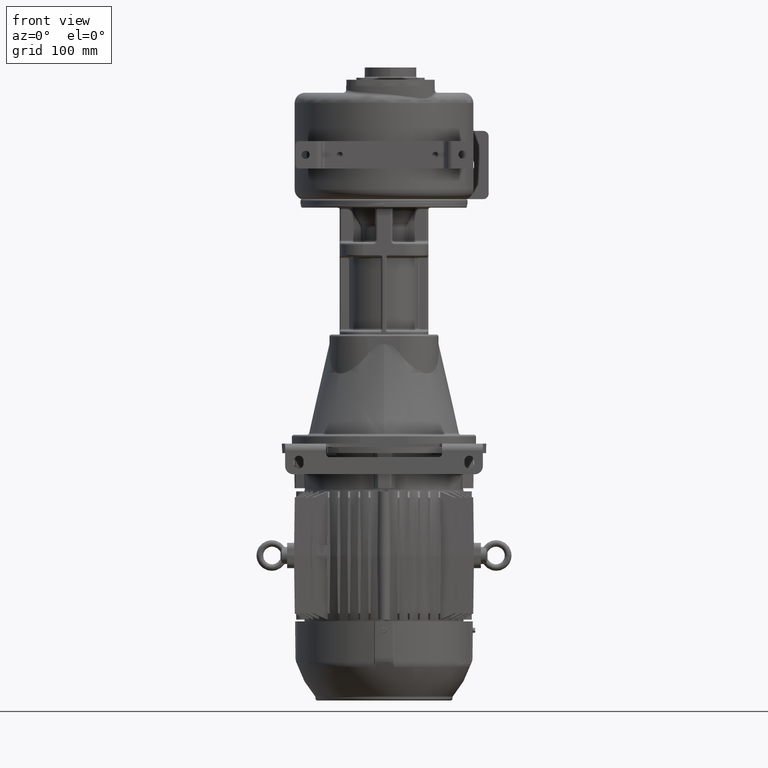
[diagram: clean part render]
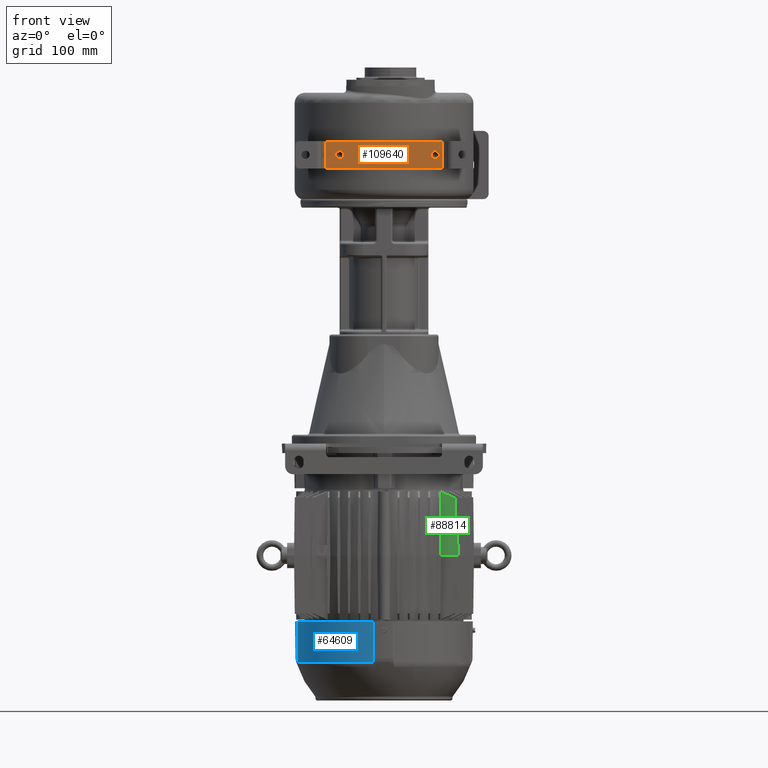
[diagram: same view with three faces highlighted in distinct colors, each labeled with its STEP entity id]
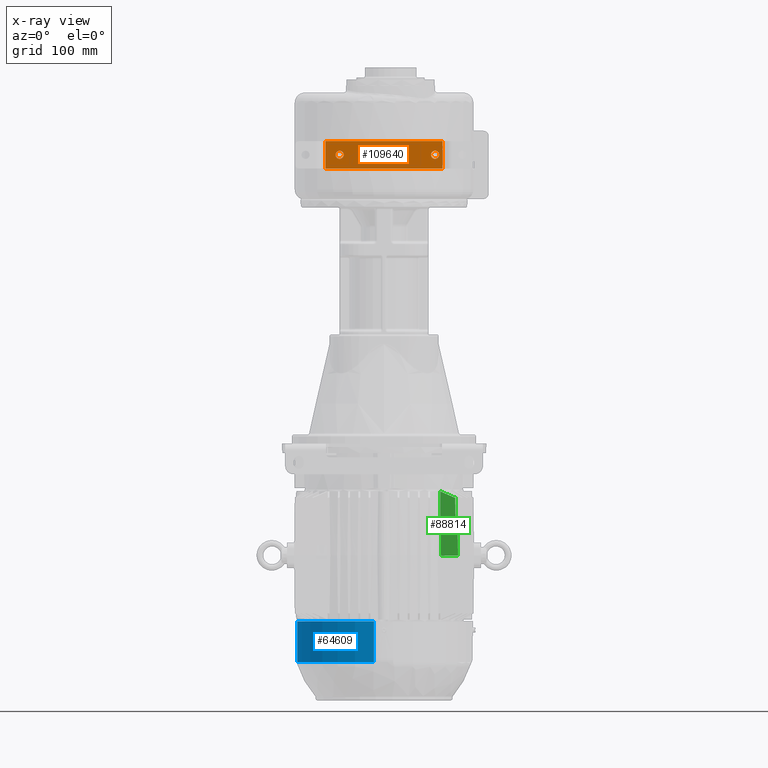
[diagram: x-ray of the same camera — body ghosted, the three highlighted faces saturated]
A machine part, front view with three faces highlighted in distinct colors.
The next image is the same camera in x-ray (body ghosted, the three faces saturated) — at least one of them is partly hidden behind the body in this view.
Their STEP definitions:

[orange] entity #109640 — the highlighted planar face has unit normal (0, 1, 0).
#42156=DIRECTION('',(-1.E0,0.E0,0.E0));
#42157=VECTOR('',#42156,1.72E2);
#42158=CARTESIAN_POINT('',(8.6E1,-5.E0,-2.E1));
#42159=LINE('',#42158,#42157);
#42200=DIRECTION('',(-1.E0,0.E0,0.E0));
#42201=VECTOR('',#42200,1.72E2);
#42202=CARTESIAN_POINT('',(8.6E1,-5.E0,2.E1));
#42203=LINE('',#42202,#42201);
#42254=DIRECTION('',(0.E0,0.E0,1.E0));
#42255=VECTOR('',#42254,4.E1);
#42256=CARTESIAN_POINT('',(8.6E1,-5.E0,-2.E1));
#42257=LINE('',#42256,#42255);
#42258=CARTESIAN_POINT('',(7.5E1,-5.E0,0.E0));
#42259=DIRECTION('',(0.E0,1.E0,0.E0));
#42260=DIRECTION('',(0.E0,0.E0,1.E0));
#42261=AXIS2_PLACEMENT_3D('',#42258,#42259,#42260);
#42263=CARTESIAN_POINT('',(7.5E1,-5.E0,0.E0));
#42264=DIRECTION('',(0.E0,1.E0,0.E0));
#42265=DIRECTION('',(0.E0,0.E0,-1.E0));
#42266=AXIS2_PLACEMENT_3D('',#42263,#42264,#42265);
#42268=CARTESIAN_POINT('',(-6.5E1,-5.E0,0.E0));
#42269=DIRECTION('',(0.E0,1.E0,0.E0));
#42270=DIRECTION('',(0.E0,0.E0,1.E0));
#42271=AXIS2_PLACEMENT_3D('',#42268,#42269,#42270);
#42273=CARTESIAN_POINT('',(-6.5E1,-5.E0,0.E0));
#42274=DIRECTION('',(0.E0,1.E0,0.E0));
#42275=DIRECTION('',(0.E0,0.E0,-1.E0));
#42276=AXIS2_PLACEMENT_3D('',#42273,#42274,#42275);
#42278=DIRECTION('',(0.E0,0.E0,1.E0));
#42279=VECTOR('',#42278,4.E1);
#42280=CARTESIAN_POINT('',(-8.6E1,-5.E0,-2.E1));
#42281=LINE('',#42280,#42279);
#45045=CARTESIAN_POINT('',(8.6E1,-5.E0,-2.E1));
#45046=CARTESIAN_POINT('',(-8.6E1,-5.E0,-2.E1));
#45047=VERTEX_POINT('',#45045);
#45048=VERTEX_POINT('',#45046);
#45057=CARTESIAN_POINT('',(8.6E1,-5.E0,2.E1));
#45058=CARTESIAN_POINT('',(-8.6E1,-5.E0,2.E1));
#45059=VERTEX_POINT('',#45057);
#45060=VERTEX_POINT('',#45058);
#45125=CARTESIAN_POINT('',(-6.5E1,-5.E0,6.E0));
#45126=CARTESIAN_POINT('',(-6.5E1,-5.E0,-6.E0));
#45127=VERTEX_POINT('',#45125);
#45128=VERTEX_POINT('',#45126);
#45129=CARTESIAN_POINT('',(7.5E1,-5.E0,6.E0));
#45130=CARTESIAN_POINT('',(7.5E1,-5.E0,-6.E0));
#45131=VERTEX_POINT('',#45129);
#45132=VERTEX_POINT('',#45130);
#109616=CARTESIAN_POINT('',(8.6E1,-5.E0,-2.E1));
#109617=DIRECTION('',(0.E0,1.E0,0.E0));
#109618=DIRECTION('',(-1.E0,0.E0,0.E0));
#109619=AXIS2_PLACEMENT_3D('',#109616,#109617,#109618);
#109620=PLANE('',#109619);
#109621=ORIENTED_EDGE('',*,*,#109468,.T.);
#109623=ORIENTED_EDGE('',*,*,#109622,.T.);
#109624=ORIENTED_EDGE('',*,*,#109526,.F.);
#109625=ORIENTED_EDGE('',*,*,#109609,.F.);
#109626=EDGE_LOOP('',(#109621,#109623,#109624,#109625));
#109627=FACE_OUTER_BOUND('',#109626,.F.);
#109629=ORIENTED_EDGE('',*,*,#109628,.F.);
#109631=ORIENTED_EDGE('',*,*,#109630,.F.);
#109632=EDGE_LOOP('',(#109629,#109631));
#109633=FACE_BOUND('',#109632,.F.);
#109635=ORIENTED_EDGE('',*,*,#109634,.F.);
#109637=ORIENTED_EDGE('',*,*,#109636,.F.);
#109638=EDGE_LOOP('',(#109635,#109637));
#109639=FACE_BOUND('',#109638,.F.);
#109640=ADVANCED_FACE('',(#109627,#109633,#109639),#109620,.F.);
#42262=CIRCLE('',#42261,6.E0);
#42267=CIRCLE('',#42266,6.E0);
#42272=CIRCLE('',#42271,6.E0);
#42277=CIRCLE('',#42276,6.E0);
#109468=EDGE_CURVE('',#45047,#45048,#42159,.T.);
#109526=EDGE_CURVE('',#45059,#45060,#42203,.T.);
#109609=EDGE_CURVE('',#45047,#45059,#42257,.T.);
#109622=EDGE_CURVE('',#45048,#45060,#42281,.T.);
#109628=EDGE_CURVE('',#45131,#45132,#42262,.T.);
#109630=EDGE_CURVE('',#45132,#45131,#42267,.T.);
#109634=EDGE_CURVE('',#45127,#45128,#42272,.T.);
#109636=EDGE_CURVE('',#45128,#45127,#42277,.T.);

[blue] entity #64609 — the highlighted cylindrical surface (partial cylindrical patch) has radius 127.75 mm, axis along (0, 0, -1).
#7869=CARTESIAN_POINT('',(3.807504991333E-13,1.31E2,-6.842001E2));
#7870=DIRECTION('',(0.E0,0.E0,1.E0));
#7871=DIRECTION('',(-9.931901222367E-1,-1.165048543689E-1,0.E0));
#7872=AXIS2_PLACEMENT_3D('',#7869,#7870,#7871);
#8082=DIRECTION('',(0.E0,1.094382470295E-14,1.E0));
#8083=VECTOR('',#8082,5.973225400103E1);
#8084=CARTESIAN_POINT('',(-1.268800381157E2,1.161165048544E2,
-7.439323540010E2));
#8085=LINE('',#8084,#8083);
#10640=DIRECTION('',(0.E0,0.E0,-1.E0));
#10641=VECTOR('',#10640,5.973225400103E1);
#10642=CARTESIAN_POINT('',(-1.488349514563E1,4.119961884265E0,-6.842001E2));
#10643=LINE('',#10642,#10641);
#10678=CARTESIAN_POINT('',(4.099095173931E-13,1.31E2,-7.439323540010E2));
#10679=DIRECTION('',(0.E0,0.E0,-1.E0));
#10680=DIRECTION('',(-1.165048543689E-1,-9.931901222367E-1,0.E0));
#10681=AXIS2_PLACEMENT_3D('',#10678,#10679,#10680);
#48375=CARTESIAN_POINT('',(-1.268800381157E2,1.161165048544E2,
-7.439323540010E2));
#48376=CARTESIAN_POINT('',(-1.268800381157E2,1.161165048544E2,-6.842001E2));
#48377=VERTEX_POINT('',#48375);
#48378=VERTEX_POINT('',#48376);
#48383=CARTESIAN_POINT('',(-1.488349514563E1,4.119961884265E0,-6.842001E2));
#48384=VERTEX_POINT('',#48383);
#48391=CARTESIAN_POINT('',(-1.488349514563E1,4.119961884265E0,
-7.439323540010E2));
#48392=VERTEX_POINT('',#48391);
#64598=CARTESIAN_POINT('',(4.441866874973E-13,1.31E2,-8.141491429497E2));
#64599=DIRECTION('',(0.E0,0.E0,-1.E0));
#64600=DIRECTION('',(-1.E0,0.E0,0.E0));
#64601=AXIS2_PLACEMENT_3D('',#64598,#64599,#64600);
#64602=CYLINDRICAL_SURFACE('',#64601,1.2775E2);
#64603=ORIENTED_EDGE('',*,*,#61070,.T.);
#64604=ORIENTED_EDGE('',*,*,#64462,.T.);
#64605=ORIENTED_EDGE('',*,*,#64589,.T.);
#64606=ORIENTED_EDGE('',*,*,#61218,.T.);
#64607=EDGE_LOOP('',(#64603,#64604,#64605,#64606));
#64608=FACE_OUTER_BOUND('',#64607,.F.);
#64609=ADVANCED_FACE('',(#64608),#64602,.T.);
#7873=CIRCLE('',#7872,1.2775E2);
#10682=CIRCLE('',#10681,1.2775E2);
#61070=EDGE_CURVE('',#48378,#48384,#7873,.T.);
#61218=EDGE_CURVE('',#48377,#48378,#8085,.T.);
#64462=EDGE_CURVE('',#48384,#48392,#10643,.T.);
#64589=EDGE_CURVE('',#48392,#48377,#10682,.T.);

[green] entity #88814 — the highlighted planar face has unit normal (0, -0.9999, 0.0131).
#6764=CARTESIAN_POINT('',(8.270358786120E1,4.829641213880E1,-5.114841674394E2));
#6765=CARTESIAN_POINT('',(8.268050339490E1,4.832247561156E1,-5.094931785122E2));
#6766=CARTESIAN_POINT('',(8.263436421871E1,4.837456877894E1,-5.055137809709E2));
#6767=CARTESIAN_POINT('',(8.256524481626E1,4.845260709177E1,-4.995524335277E2));
#6768=CARTESIAN_POINT('',(8.251922460576E1,4.850456521575E1,-4.955833519526E2));
#6769=CARTESIAN_POINT('',(8.249622936373E1,4.853052740597E1,-4.936001E2));
#6776=CARTESIAN_POINT('',(8.270358786120E1,4.829641213880E1,-5.114841674394E2));
#26175=DIRECTION('',(-1.308847434605E-2,1.308847434606E-2,9.998286771635E-1));
#26176=VECTOR('',#26175,7.612897519260E1);
#26177=CARTESIAN_POINT('',(8.37E1,4.73E1,-5.876001E2));
#26178=LINE('',#26177,#26176);
#26183=DIRECTION('',(-1.308847434605E-2,1.308847434606E-2,9.998286771635E-1));
#26184=VECTOR('',#26183,4.247529209439E1);
#26185=CARTESIAN_POINT('',(1.050035741063E2,4.784981011756E1,-5.456001E2));
#26186=LINE('',#26185,#26184);
#26187=DIRECTION('',(-1.E0,0.E0,0.E0));
#26188=VECTOR('',#26187,3.E0);
#26189=CARTESIAN_POINT('',(1.080035741063E2,4.784981011756E1,-5.456001E2));
#26190=LINE('',#26189,#26188);
#26191=DIRECTION('',(-1.308847434605E-2,1.308847434606E-2,9.998286771635E-1));
#26192=VECTOR('',#26191,4.200719679211E1);
#26193=CARTESIAN_POINT('',(1.085533842239E2,4.73E1,-5.876001E2));
#26194=LINE('',#26193,#26192);
#26264=DIRECTION('',(-1.E0,0.E0,0.E0));
#26265=VECTOR('',#26264,2.485338422391E1);
#26266=CARTESIAN_POINT('',(1.085533842239E2,4.73E1,-5.876001E2));
#26267=LINE('',#26266,#26265);
#26318=CARTESIAN_POINT('',(8.249622936373E1,4.853052740597E1,-4.936001E2));
#26319=CARTESIAN_POINT('',(8.310092593453E1,4.852727786082E1,
-4.938483327848E2));
#26320=CARTESIAN_POINT('',(8.431960904804E1,4.852069349824E1,
-4.943513123030E2));
#26321=CARTESIAN_POINT('',(8.617463585466E1,4.851056467083E1,
-4.951250535238E2));
#26322=CARTESIAN_POINT('',(8.805913934256E1,4.850016885374E1,
-4.959191900878E2));
#26323=CARTESIAN_POINT('',(8.997481280216E1,4.848949525046E1,
-4.967345467419E2));
#26324=CARTESIAN_POINT('',(9.192368266601E1,4.847853097334E1,
-4.975721079732E2));
#26325=CARTESIAN_POINT('',(9.390781820219E1,4.846726259147E1,
-4.984328997688E2));
#26326=CARTESIAN_POINT('',(9.592942920402E1,4.845567558468E1,
-4.993180313253E2));
#26327=CARTESIAN_POINT('',(9.799081826905E1,4.844375460360E1,
-5.002286751812E2));
#26328=CARTESIAN_POINT('',(1.000945329666E2,4.843148255323E1,
-5.011661372232E2));
#26329=CARTESIAN_POINT('',(1.022428713060E2,4.841884352211E1,
-5.021316329286E2));
#26330=CARTESIAN_POINT('',(1.037074767745E2,4.841015548178E1,
-5.027953124099E2));
#26331=CARTESIAN_POINT('',(1.044476373354E2,4.840574688848E1,
-5.031320848931E2));
#47370=VERTEX_POINT('',#6776);
#47371=VERTEX_POINT('',#6769);
#47750=CARTESIAN_POINT('',(1.080035741063E2,4.784981011756E1,-5.456001E2));
#47752=VERTEX_POINT('',#47750);
#47762=CARTESIAN_POINT('',(1.085533842239E2,4.73E1,-5.876001E2));
#47764=VERTEX_POINT('',#47762);
#47842=CARTESIAN_POINT('',(1.050035741063E2,4.784981011756E1,-5.456001E2));
#47843=VERTEX_POINT('',#47842);
#47844=CARTESIAN_POINT('',(1.044476373354E2,4.840574688848E1,
-5.031320848931E2));
#47845=VERTEX_POINT('',#47844);
#47943=CARTESIAN_POINT('',(8.37E1,4.73E1,-5.876001E2));
#47944=VERTEX_POINT('',#47943);
#88795=CARTESIAN_POINT('',(1.055533842239E2,4.73E1,-5.876001E2));
#88796=DIRECTION('',(0.E0,-9.999143275740E-1,1.308959557135E-2));
#88797=DIRECTION('',(0.E0,-1.308959557135E-2,-9.999143275740E-1));
#88798=AXIS2_PLACEMENT_3D('',#88795,#88796,#88797);
#88799=PLANE('',#88798);
#88801=ORIENTED_EDGE('',*,*,#88800,.F.);
#88803=ORIENTED_EDGE('',*,*,#88802,.F.);
#88805=ORIENTED_EDGE('',*,*,#88804,.F.);
#88807=ORIENTED_EDGE('',*,*,#88806,.T.);
#88808=ORIENTED_EDGE('',*,*,#88783,.T.);
#88809=ORIENTED_EDGE('',*,*,#60413,.T.);
#88811=ORIENTED_EDGE('',*,*,#88810,.T.);
#88812=EDGE_LOOP('',(#88801,#88803,#88805,#88807,#88808,#88809,#88811));
#88813=FACE_OUTER_BOUND('',#88812,.F.);
#88814=ADVANCED_FACE('',(#88813),#88799,.T.);
#6770=B_SPLINE_CURVE_WITH_KNOTS('',3,(#6764,#6765,#6766,#6767,#6768,#6769),
.UNSPECIFIED.,.F.,.F.,(4,1,1,4),(0.E0,3.333333333333E-1,6.666666666667E-1,1.E0),
.UNSPECIFIED.);
#26332=B_SPLINE_CURVE_WITH_KNOTS('',3,(#26318,#26319,#26320,#26321,#26322,
#26323,#26324,#26325,#26326,#26327,#26328,#26329,#26330,#26331),.UNSPECIFIED.,
.F.,.F.,(4,1,1,1,1,1,1,1,1,1,1,4),(0.E0,9.090909090909E-2,1.818181818182E-1,
2.727272727273E-1,3.636363636364E-1,4.545454545455E-1,5.454545454545E-1,
6.363636363636E-1,7.272727272727E-1,8.181818181818E-1,9.090909090909E-1,1.E0),
.UNSPECIFIED.);
#60413=EDGE_CURVE('',#47370,#47371,#6770,.T.);
#88783=EDGE_CURVE('',#47944,#47370,#26178,.T.);
#88800=EDGE_CURVE('',#47843,#47845,#26186,.T.);
#88802=EDGE_CURVE('',#47752,#47843,#26190,.T.);
#88804=EDGE_CURVE('',#47764,#47752,#26194,.T.);
#88806=EDGE_CURVE('',#47764,#47944,#26267,.T.);
#88810=EDGE_CURVE('',#47371,#47845,#26332,.T.);